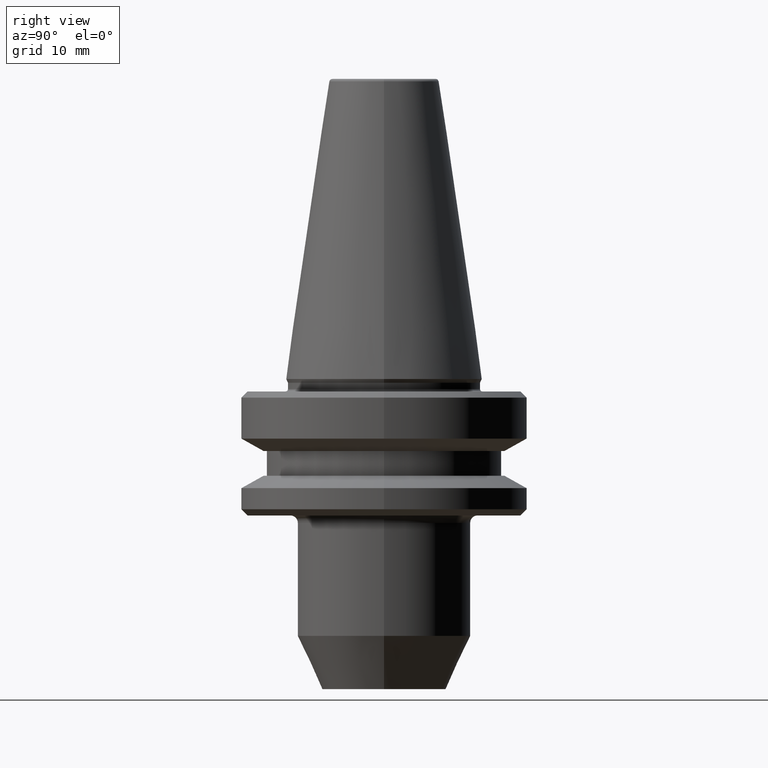
[diagram: clean part render]
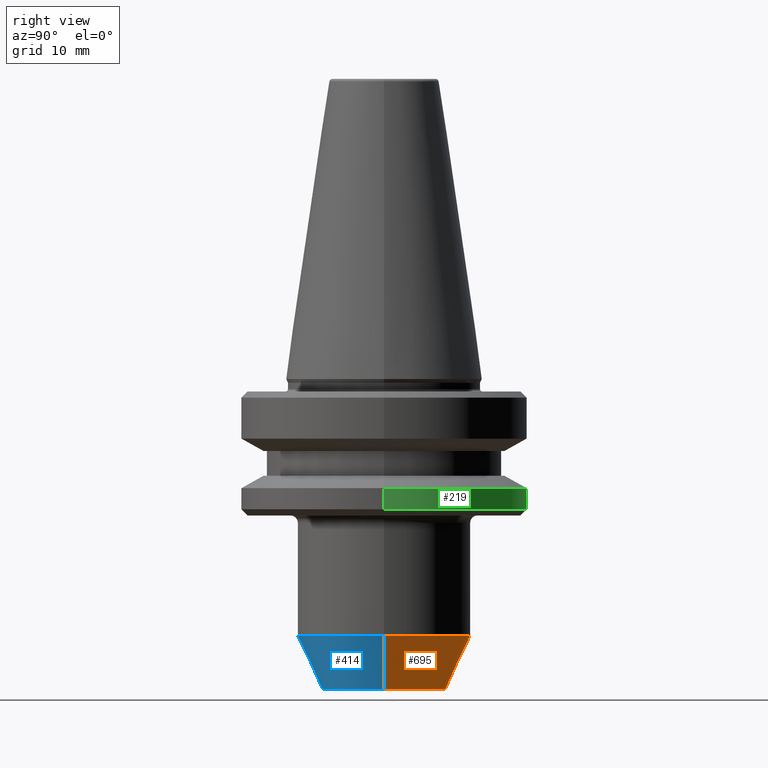
[diagram: same view with three faces highlighted in distinct colors, each labeled with its STEP entity id]
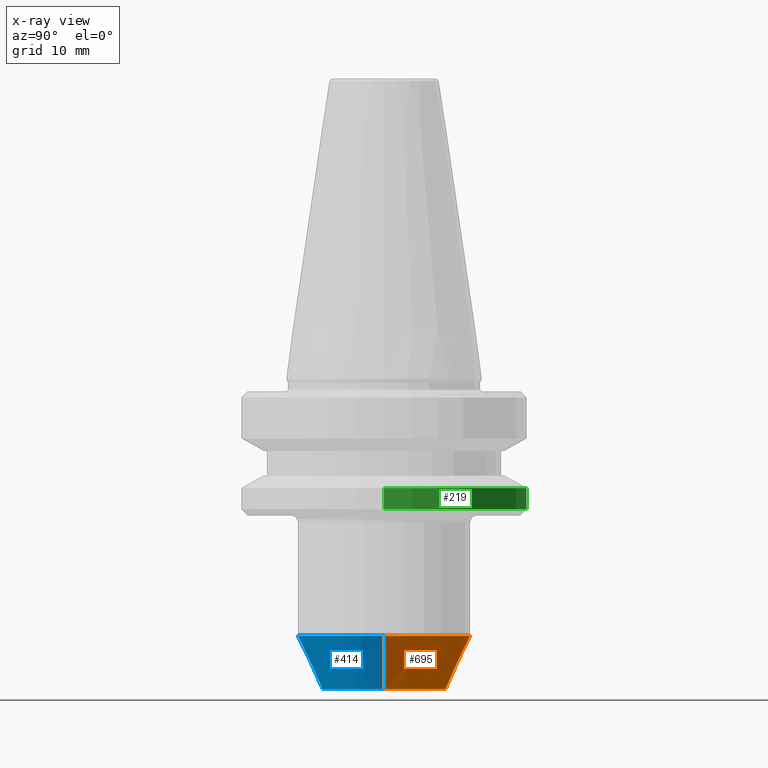
[diagram: x-ray of the same camera — body ghosted, the three highlighted faces saturated]
A machine part, right view with three faces highlighted in distinct colors.
The next image is the same camera in x-ray (body ghosted, the three faces saturated) — at least one of them is partly hidden behind the body in this view.
Their STEP definitions:

[orange] entity #695 — the highlighted conical surface has half-angle 25 deg.
#12 = ORIENTED_EDGE ( 'NONE', *, *, #461, .T. ) ;
#108 = EDGE_LOOP ( 'NONE', ( #12, #664, #174, #356 ) ) ;
#174 = ORIENTED_EDGE ( 'NONE', *, *, #500, .F. ) ;
#175 = CARTESIAN_POINT ( 'NONE',  ( -10.00000000000012100, 1.224646799147367900E-015, -49.99999999999982200 ) ) ;
#179 = AXIS2_PLACEMENT_3D ( 'NONE', #824, #905, #820 ) ;
#181 = CIRCLE ( 'NONE', #516, 13.99999999999990100 ) ;
#194 = VERTEX_POINT ( 'NONE', #763 ) ;
#220 = FACE_OUTER_BOUND ( 'NONE', #108, .T. ) ;
#241 = AXIS2_PLACEMENT_3D ( 'NONE', #625, #573, #680 ) ;
#319 = CARTESIAN_POINT ( 'NONE',  ( -10.00000000000012100, 1.469576158976825100E-015, -49.99999999999982200 ) ) ;
#350 = DIRECTION ( 'NONE',  ( -0.4226182617406911700, 5.175581015019557100E-017, 0.9063077870366537100 ) ) ;
#355 = VECTOR ( 'NONE', #350, 1000.000000000000100 ) ;
#356 = ORIENTED_EDGE ( 'NONE', *, *, #973, .F. ) ;
#378 = CONICAL_SURFACE ( 'NONE', #179, 10.00000000000012100, 0.4363323129985732800 ) ;
#413 = CARTESIAN_POINT ( 'NONE',  ( 13.99999999999990100, 0.0000000000000000000, -41.42197231796185300 ) ) ;
#420 = LINE ( 'NONE', #649, #605 ) ;
#427 = VERTEX_POINT ( 'NONE', #319 ) ;
#461 = EDGE_CURVE ( 'NONE', #968, #427, #632, .T. ) ;
#498 = DIRECTION ( 'NONE',  ( -0.0000000000000000000, -0.0000000000000000000, 1.000000000000000000 ) ) ;
#500 = EDGE_CURVE ( 'NONE', #675, #194, #181, .T. ) ;
#516 = AXIS2_PLACEMENT_3D ( 'NONE', #865, #498, #519 ) ;
#519 = DIRECTION ( 'NONE',  ( 1.000000000000000000, 0.0000000000000000000, 0.0000000000000000000 ) ) ;
#573 = DIRECTION ( 'NONE',  ( -0.0000000000000000000, -0.0000000000000000000, 1.000000000000000000 ) ) ;
#577 = DIRECTION ( 'NONE',  ( 0.4226182617406911700, 0.0000000000000000000, 0.9063077870366537100 ) ) ;
#605 = VECTOR ( 'NONE', #577, 1000.000000000000100 ) ;
#625 = CARTESIAN_POINT ( 'NONE',  ( 0.0000000000000000000, 0.0000000000000000000, -49.99999999999982200 ) ) ;
#632 = CIRCLE ( 'NONE', #241, 10.00000000000012100 ) ;
#634 = CARTESIAN_POINT ( 'NONE',  ( 10.00000000000012100, 0.0000000000000000000, -49.99999999999982200 ) ) ;
#649 = CARTESIAN_POINT ( 'NONE',  ( 10.00000000000012100, 0.0000000000000000000, -49.99999999999982200 ) ) ;
#664 = ORIENTED_EDGE ( 'NONE', *, *, #744, .T. ) ;
#675 = VERTEX_POINT ( 'NONE', #413 ) ;
#680 = DIRECTION ( 'NONE',  ( 1.000000000000000000, 0.0000000000000000000, 0.0000000000000000000 ) ) ;
#695 = ADVANCED_FACE ( 'NONE', ( #220 ), #378, .T. ) ;
#744 = EDGE_CURVE ( 'NONE', #427, #194, #975, .T. ) ;
#763 = CARTESIAN_POINT ( 'NONE',  ( -13.99999999999990100, 1.714505518806282200E-015, -41.42197231796185300 ) ) ;
#820 = DIRECTION ( 'NONE',  ( 1.000000000000000000, 0.0000000000000000000, 0.0000000000000000000 ) ) ;
#824 = CARTESIAN_POINT ( 'NONE',  ( 0.0000000000000000000, 0.0000000000000000000, -49.99999999999982200 ) ) ;
#865 = CARTESIAN_POINT ( 'NONE',  ( 0.0000000000000000000, 0.0000000000000000000, -41.42197231796185300 ) ) ;
#905 = DIRECTION ( 'NONE',  ( -0.0000000000000000000, -0.0000000000000000000, 1.000000000000000000 ) ) ;
#968 = VERTEX_POINT ( 'NONE', #634 ) ;
#973 = EDGE_CURVE ( 'NONE', #968, #675, #420, .T. ) ;
#975 = LINE ( 'NONE', #175, #355 ) ;

[blue] entity #414 — the highlighted conical surface has half-angle 25 deg.
#20 = DIRECTION ( 'NONE',  ( 1.000000000000000000, 0.0000000000000000000, 0.0000000000000000000 ) ) ;
#24 = ORIENTED_EDGE ( 'NONE', *, *, #973, .T. ) ;
#138 = EDGE_CURVE ( 'NONE', #427, #968, #287, .T. ) ;
#150 = AXIS2_PLACEMENT_3D ( 'NONE', #949, #785, #531 ) ;
#168 = DIRECTION ( 'NONE',  ( -0.0000000000000000000, -0.0000000000000000000, 1.000000000000000000 ) ) ;
#175 = CARTESIAN_POINT ( 'NONE',  ( -10.00000000000012100, 1.224646799147367900E-015, -49.99999999999982200 ) ) ;
#194 = VERTEX_POINT ( 'NONE', #763 ) ;
#209 = CARTESIAN_POINT ( 'NONE',  ( 0.0000000000000000000, 0.0000000000000000000, -41.42197231796185300 ) ) ;
#232 = CARTESIAN_POINT ( 'NONE',  ( 0.0000000000000000000, 0.0000000000000000000, -49.99999999999982200 ) ) ;
#244 = AXIS2_PLACEMENT_3D ( 'NONE', #232, #582, #20 ) ;
#258 = ORIENTED_EDGE ( 'NONE', *, *, #485, .F. ) ;
#287 = CIRCLE ( 'NONE', #150, 10.00000000000012100 ) ;
#319 = CARTESIAN_POINT ( 'NONE',  ( -10.00000000000012100, 1.469576158976825100E-015, -49.99999999999982200 ) ) ;
#350 = DIRECTION ( 'NONE',  ( -0.4226182617406911700, 5.175581015019557100E-017, 0.9063077870366537100 ) ) ;
#355 = VECTOR ( 'NONE', #350, 1000.000000000000100 ) ;
#385 = ORIENTED_EDGE ( 'NONE', *, *, #138, .T. ) ;
#401 = AXIS2_PLACEMENT_3D ( 'NONE', #209, #168, #767 ) ;
#413 = CARTESIAN_POINT ( 'NONE',  ( 13.99999999999990100, 0.0000000000000000000, -41.42197231796185300 ) ) ;
#414 = ADVANCED_FACE ( 'NONE', ( #918 ), #444, .T. ) ;
#420 = LINE ( 'NONE', #649, #605 ) ;
#427 = VERTEX_POINT ( 'NONE', #319 ) ;
#444 = CONICAL_SURFACE ( 'NONE', #244, 10.00000000000012100, 0.4363323129985732800 ) ;
#485 = EDGE_CURVE ( 'NONE', #194, #675, #601, .T. ) ;
#509 = ORIENTED_EDGE ( 'NONE', *, *, #744, .F. ) ;
#531 = DIRECTION ( 'NONE',  ( 1.000000000000000000, 0.0000000000000000000, 0.0000000000000000000 ) ) ;
#577 = DIRECTION ( 'NONE',  ( 0.4226182617406911700, 0.0000000000000000000, 0.9063077870366537100 ) ) ;
#582 = DIRECTION ( 'NONE',  ( -0.0000000000000000000, -0.0000000000000000000, 1.000000000000000000 ) ) ;
#601 = CIRCLE ( 'NONE', #401, 13.99999999999990100 ) ;
#605 = VECTOR ( 'NONE', #577, 1000.000000000000100 ) ;
#634 = CARTESIAN_POINT ( 'NONE',  ( 10.00000000000012100, 0.0000000000000000000, -49.99999999999982200 ) ) ;
#649 = CARTESIAN_POINT ( 'NONE',  ( 10.00000000000012100, 0.0000000000000000000, -49.99999999999982200 ) ) ;
#673 = EDGE_LOOP ( 'NONE', ( #509, #385, #24, #258 ) ) ;
#675 = VERTEX_POINT ( 'NONE', #413 ) ;
#744 = EDGE_CURVE ( 'NONE', #427, #194, #975, .T. ) ;
#763 = CARTESIAN_POINT ( 'NONE',  ( -13.99999999999990100, 1.714505518806282200E-015, -41.42197231796185300 ) ) ;
#767 = DIRECTION ( 'NONE',  ( 1.000000000000000000, 0.0000000000000000000, 0.0000000000000000000 ) ) ;
#785 = DIRECTION ( 'NONE',  ( -0.0000000000000000000, -0.0000000000000000000, 1.000000000000000000 ) ) ;
#918 = FACE_OUTER_BOUND ( 'NONE', #673, .T. ) ;
#949 = CARTESIAN_POINT ( 'NONE',  ( 0.0000000000000000000, 0.0000000000000000000, -49.99999999999982200 ) ) ;
#968 = VERTEX_POINT ( 'NONE', #634 ) ;
#973 = EDGE_CURVE ( 'NONE', #968, #675, #420, .T. ) ;
#975 = LINE ( 'NONE', #175, #355 ) ;

[green] entity #219 — the highlighted cylindrical surface (partial cylindrical patch) has radius 23 mm, axis along (-0, -0, 1).
#21 = CIRCLE ( 'NONE', #689, 22.99999999999990800 ) ;
#52 = DIRECTION ( 'NONE',  ( -0.0000000000000000000, -0.0000000000000000000, 1.000000000000000000 ) ) ;
#64 = AXIS2_PLACEMENT_3D ( 'NONE', #262, #637, #311 ) ;
#77 = DIRECTION ( 'NONE',  ( -0.0000000000000000000, -0.0000000000000000000, 1.000000000000000000 ) ) ;
#130 = VERTEX_POINT ( 'NONE', #1001 ) ;
#140 = CARTESIAN_POINT ( 'NONE',  ( 0.0000000000000000000, 0.0000000000000000000, -20.99999999999990800 ) ) ;
#180 = VERTEX_POINT ( 'NONE', #622 ) ;
#192 = ORIENTED_EDGE ( 'NONE', *, *, #669, .T. ) ;
#219 = ADVANCED_FACE ( 'NONE', ( #659 ), #440, .T. ) ;
#257 = DIRECTION ( 'NONE',  ( 1.000000000000000000, 0.0000000000000000000, 0.0000000000000000000 ) ) ;
#262 = CARTESIAN_POINT ( 'NONE',  ( 0.0000000000000000000, 0.0000000000000000000, 80.37668748141543100 ) ) ;
#267 = EDGE_CURVE ( 'NONE', #130, #180, #21, .T. ) ;
#272 = CARTESIAN_POINT ( 'NONE',  ( 22.99999999999990800, 0.0000000000000000000, 80.37668748141543100 ) ) ;
#284 = CARTESIAN_POINT ( 'NONE',  ( 0.0000000000000000000, 0.0000000000000000000, -17.59988266494572100 ) ) ;
#304 = DIRECTION ( 'NONE',  ( -0.0000000000000000000, -0.0000000000000000000, 1.000000000000000000 ) ) ;
#311 = DIRECTION ( 'NONE',  ( 1.000000000000000000, 0.0000000000000000000, 0.0000000000000000000 ) ) ;
#338 = DIRECTION ( 'NONE',  ( -0.0000000000000000000, -0.0000000000000000000, 1.000000000000000000 ) ) ;
#341 = DIRECTION ( 'NONE',  ( 1.000000000000000000, 0.0000000000000000000, 0.0000000000000000000 ) ) ;
#349 = ORIENTED_EDGE ( 'NONE', *, *, #904, .T. ) ;
#366 = AXIS2_PLACEMENT_3D ( 'NONE', #140, #338, #341 ) ;
#440 = CYLINDRICAL_SURFACE ( 'NONE', #64, 22.99999999999990800 ) ;
#456 = LINE ( 'NONE', #750, #851 ) ;
#499 = VECTOR ( 'NONE', #77, 1000.000000000000000 ) ;
#522 = VERTEX_POINT ( 'NONE', #639 ) ;
#608 = EDGE_LOOP ( 'NONE', ( #349, #192, #874, #826 ) ) ;
#622 = CARTESIAN_POINT ( 'NONE',  ( -22.99999999999990800, 2.816687638038901300E-015, -17.59988266494572100 ) ) ;
#637 = DIRECTION ( 'NONE',  ( -0.0000000000000000000, -0.0000000000000000000, 1.000000000000000000 ) ) ;
#639 = CARTESIAN_POINT ( 'NONE',  ( -22.99999999999990800, 2.816687638038901300E-015, -20.99999999999990800 ) ) ;
#659 = FACE_OUTER_BOUND ( 'NONE', #608, .T. ) ;
#669 = EDGE_CURVE ( 'NONE', #522, #180, #456, .T. ) ;
#681 = CIRCLE ( 'NONE', #366, 22.99999999999990800 ) ;
#689 = AXIS2_PLACEMENT_3D ( 'NONE', #284, #52, #257 ) ;
#705 = LINE ( 'NONE', #272, #499 ) ;
#725 = VERTEX_POINT ( 'NONE', #738 ) ;
#738 = CARTESIAN_POINT ( 'NONE',  ( 22.99999999999990800, 0.0000000000000000000, -20.99999999999990800 ) ) ;
#750 = CARTESIAN_POINT ( 'NONE',  ( -22.99999999999990800, 2.816687638038901300E-015, 80.37668748141543100 ) ) ;
#826 = ORIENTED_EDGE ( 'NONE', *, *, #838, .F. ) ;
#838 = EDGE_CURVE ( 'NONE', #725, #130, #705, .T. ) ;
#851 = VECTOR ( 'NONE', #304, 1000.000000000000000 ) ;
#874 = ORIENTED_EDGE ( 'NONE', *, *, #267, .F. ) ;
#904 = EDGE_CURVE ( 'NONE', #725, #522, #681, .T. ) ;
#1001 = CARTESIAN_POINT ( 'NONE',  ( 22.99999999999990800, 0.0000000000000000000, -17.59988266494572100 ) ) ;